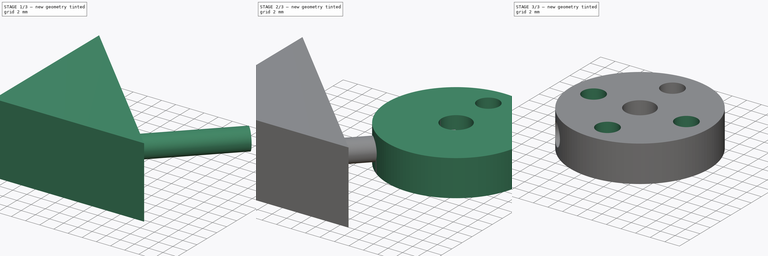
[diagram: build sequence overview — one tinted view per stage of 3, left to right]
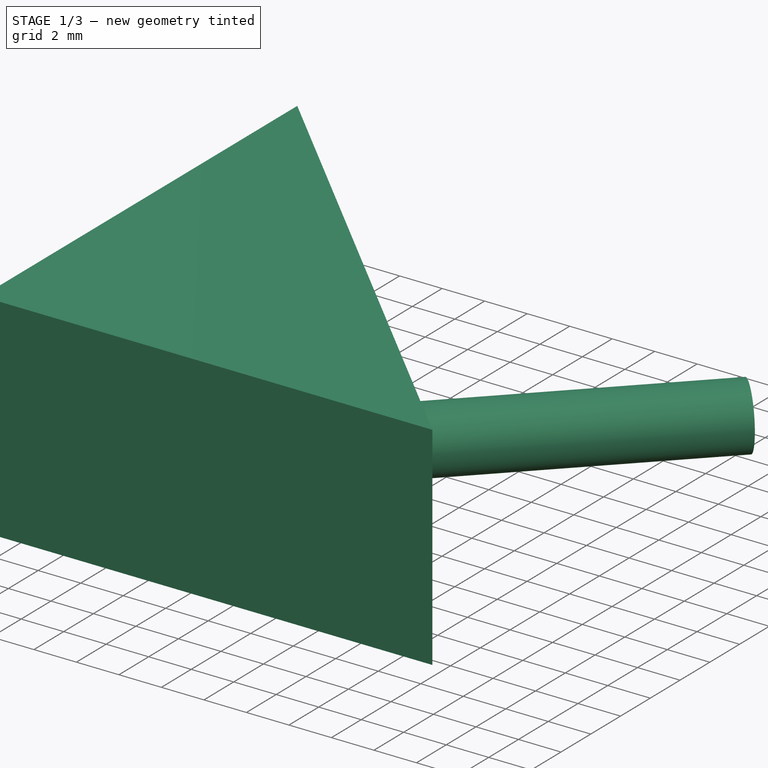
[diagram: stage 1 of 3 — iso view after this stage's code; geometry added in this stage tinted green]
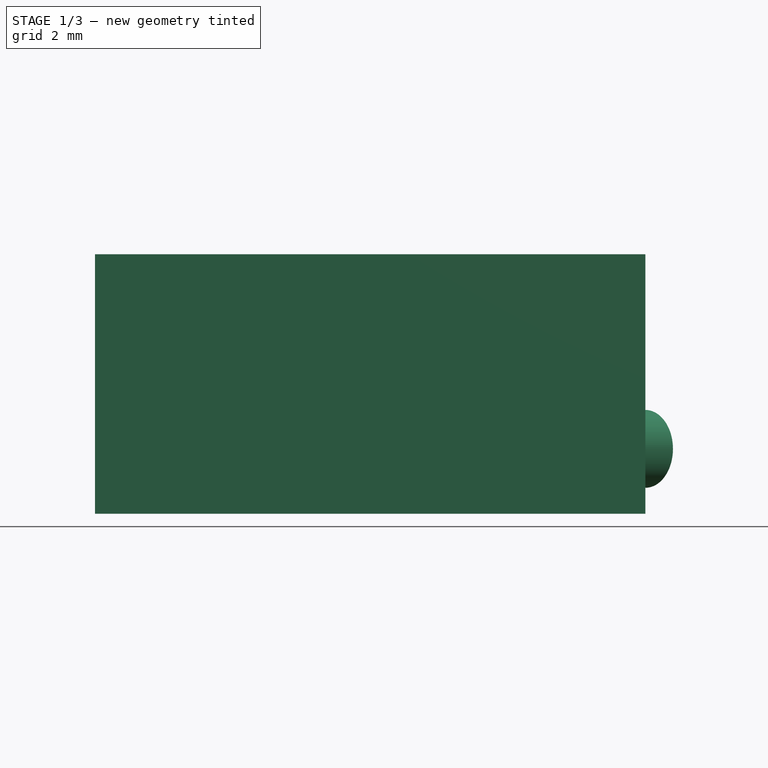
[diagram: stage 1 of 3 — front view after this stage's code; geometry added in this stage tinted green]
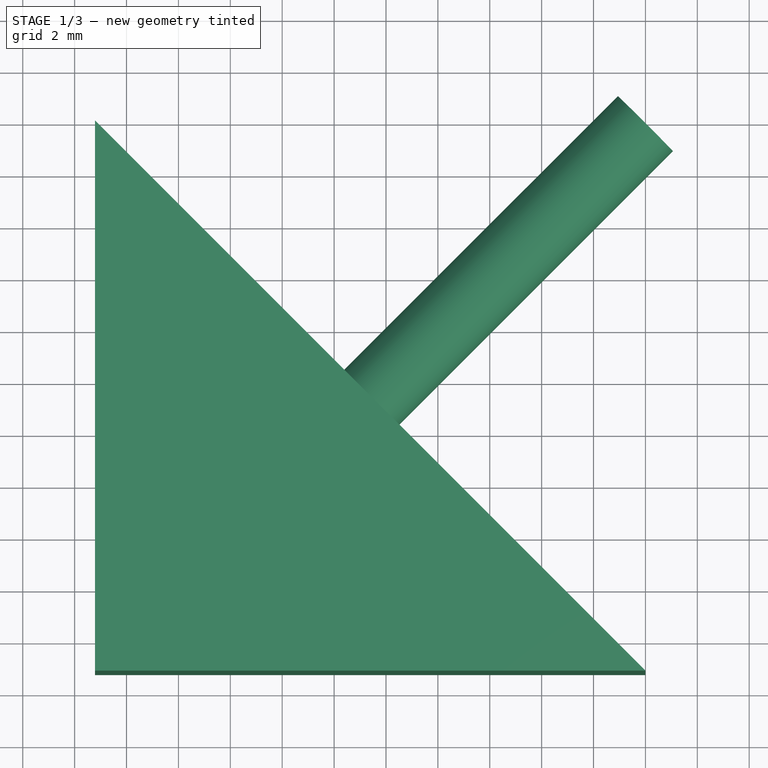
[diagram: stage 1 of 3 — top view after this stage's code; geometry added in this stage tinted green]
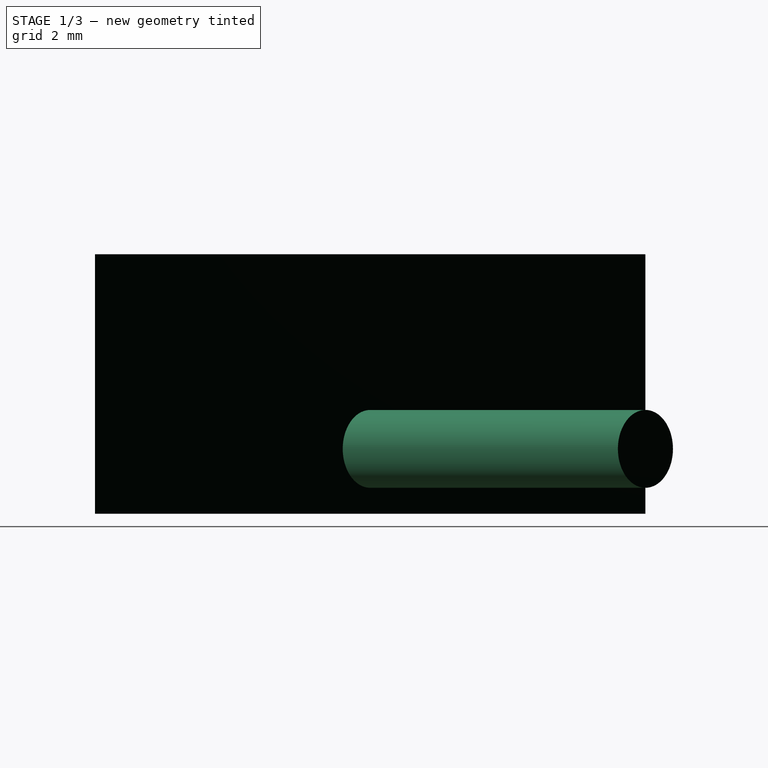
[diagram: stage 1 of 3 — right view after this stage's code; geometry added in this stage tinted green]
FCSTD DOCUMENT  (FreeCAD 0.18.1R)
Label: motor_hub
License: All rights reserved
LicenseURL: http://en.wikipedia.org/wiki/All_rights_reserved
objects: Sketcher::SketchObject×8, PartDesign::Pad×3, PartDesign::Pocket×2, PartDesign::Body×2, PartDesign::PolarPattern×1, PartDesign::Boolean×1
note: 22 computed .brp shape members not serialized (recipe doc carries the construction recipe); baked Part::Feature solids carry a one-line shape summary decoded from their .brp

FEATURE [Sketcher::SketchObject] Sketch003
  MapMode = 5
  Placement = pos=(0,0,0) rot=(1,0,0;1.5708rad)
  Support = -> [XZ_Plane]
  sketch-geometry (1):
    g0: Circle CenterX=0 CenterY=2.5 CenterZ=0 NormalX=0 NormalY=0 NormalZ=1 AngleXU=0 Radius=1.5
  constraints (3):
    c: PointOnObject(g0,g-2)
    c: DistanceY(g0) = 2.5
    c: Radius(g0) = 1.5
FEATURE [Sketcher::SketchObject] Sketch004
  MapMode = 5
  Support = -> [XY_Plane]
  sketch-geometry (3):
    g0: LineSegment StartX=-30 StartY=0 StartZ=0 EndX=0 EndY=-30 EndZ=0
    g1: LineSegment StartX=0 StartY=-30 StartZ=0 EndX=-30 EndY=-30 EndZ=0
    g2: LineSegment StartX=-30 StartY=-30 StartZ=0 EndX=-30 EndY=0 EndZ=0
  constraints (9):
    c: Coincident(g0,g1)
    c: Coincident(g1,g2)
    c: Coincident(g0,g2)
    c: Vertical(g2)
    c: Horizontal(g1)
    c: Equal(g1,g2)
    c: PointOnObject(g0,g-2)
    c: PointOnObject(g0,g-1)
    c: Distance(g2) = 30
FEATURE [Sketcher::SketchObject] Sketch005
  MapMode = 5
  Placement = pos=(0,0,0) rot=(1,0,0;1.5708rad)
  Support = -> [XZ_Plane]
  sketch-geometry (1):
    g0: Circle CenterX=0 CenterY=2.5 CenterZ=0 NormalX=0 NormalY=0 NormalZ=1 AngleXU=0 Radius=1.5
  constraints (3):
    c: PointOnObject(g0,g-2)
    c: Radius(g0) = 1.5
    c: DistanceY(g0) = 2.5
FEATURE [Sketcher::SketchObject] Sketch006
  MapMode = 5
  Support = -> [XY_Plane001]
  sketch-geometry (3):
    g0: LineSegment StartX=-21.2132 StartY=0 StartZ=0 EndX=0 EndY=-21.2132 EndZ=0
    g1: LineSegment StartX=0 StartY=-21.2132 StartZ=0 EndX=-21.2132 EndY=-21.2132 EndZ=0
    g2: LineSegment StartX=-21.2132 StartY=-21.2132 StartZ=0 EndX=-21.2132 EndY=0 EndZ=0
  constraints (9):
    c: Coincident(g0,g1)
    c: Coincident(g1,g2)
    c: Coincident(g0,g2)
    c: PointOnObject(g0,g-1)
    c: PointOnObject(g0,g-2)
    c: Horizontal(g1)
    c: Vertical(g2)
    c: Equal(g1,g2)
    c: Distance(g-1,g0) = 15
FEATURE [PartDesign::Pad] Pad001
  Length = 10
  Length2 = 100
  Profile = -> Sketch006
  Type = 0
FEATURE [Sketcher::SketchObject] Sketch007
  MapMode = 5
  Placement = pos=(-10.6066,-10.6066,0) rot=(0.281085,0.678598,0.678598;2.59356rad)
  Support = -> [Pad001]
  sketch-geometry (1):
    g0: Circle CenterX=0 CenterY=2.5 CenterZ=0 NormalX=0 NormalY=0 NormalZ=1 AngleXU=0 Radius=1.5
  constraints (3):
    c: PointOnObject(g0,g-2)
    c: Radius(g0) = 1.5
    c: DistanceY(g0) = 2.5
FEATURE [PartDesign::Pad] Pad002
  BaseFeature = -> Pad001
  Length = 15
  Length2 = 100
  Profile = -> Sketch007
  Type = 0
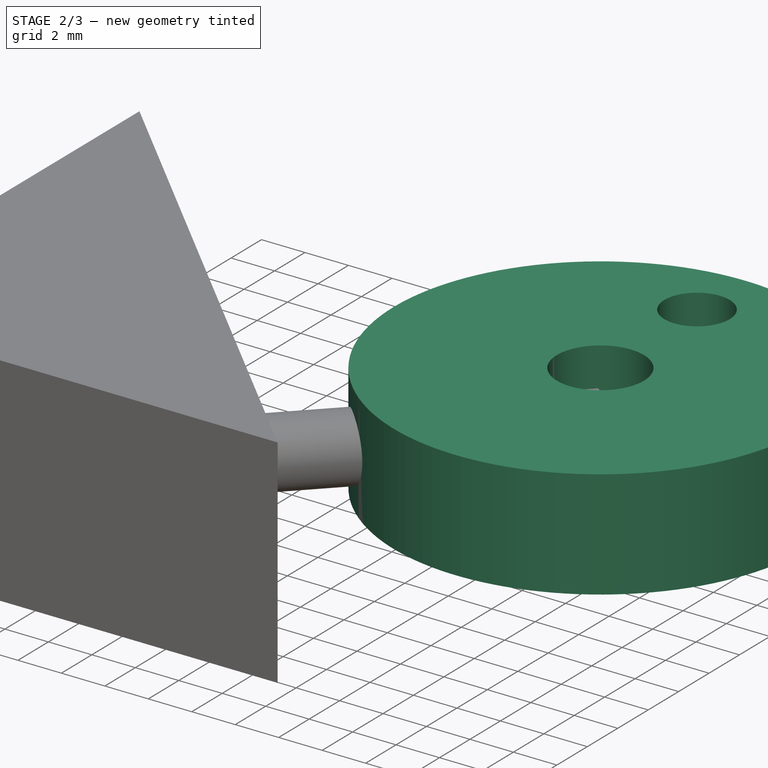
[diagram: stage 2 of 3 — iso view after this stage's code; geometry added in this stage tinted green]
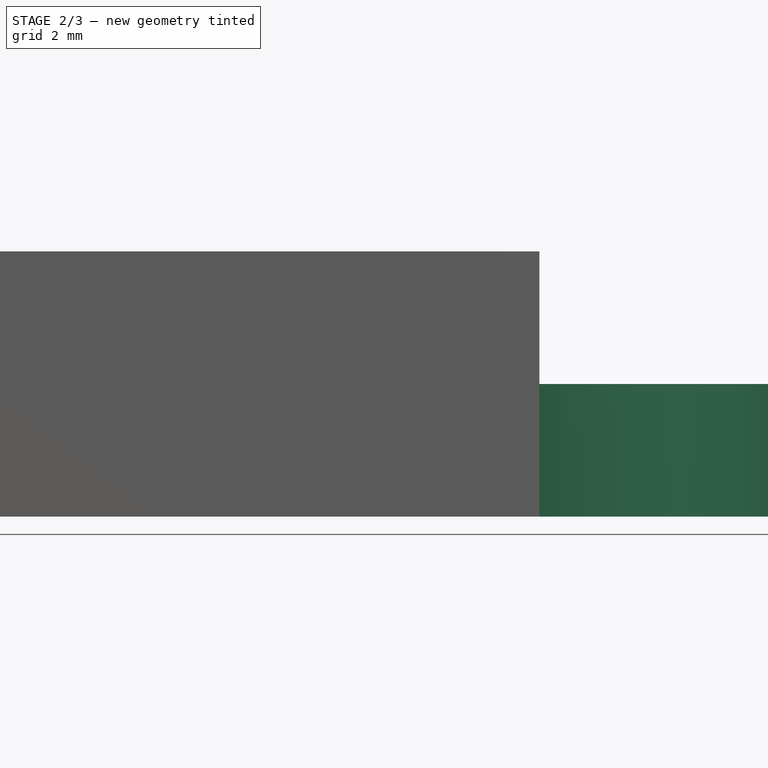
[diagram: stage 2 of 3 — front view after this stage's code; geometry added in this stage tinted green]
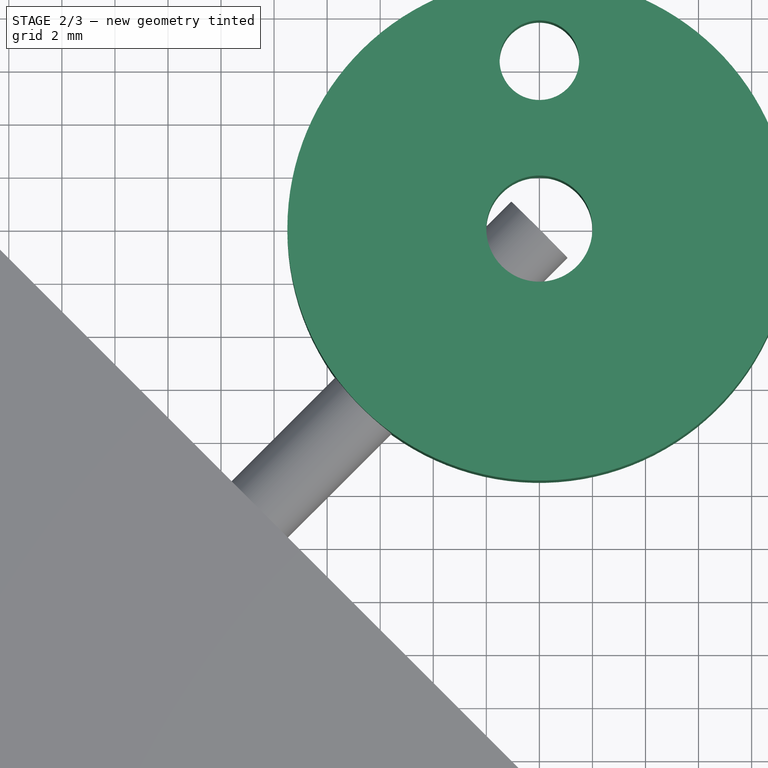
[diagram: stage 2 of 3 — top view after this stage's code; geometry added in this stage tinted green]
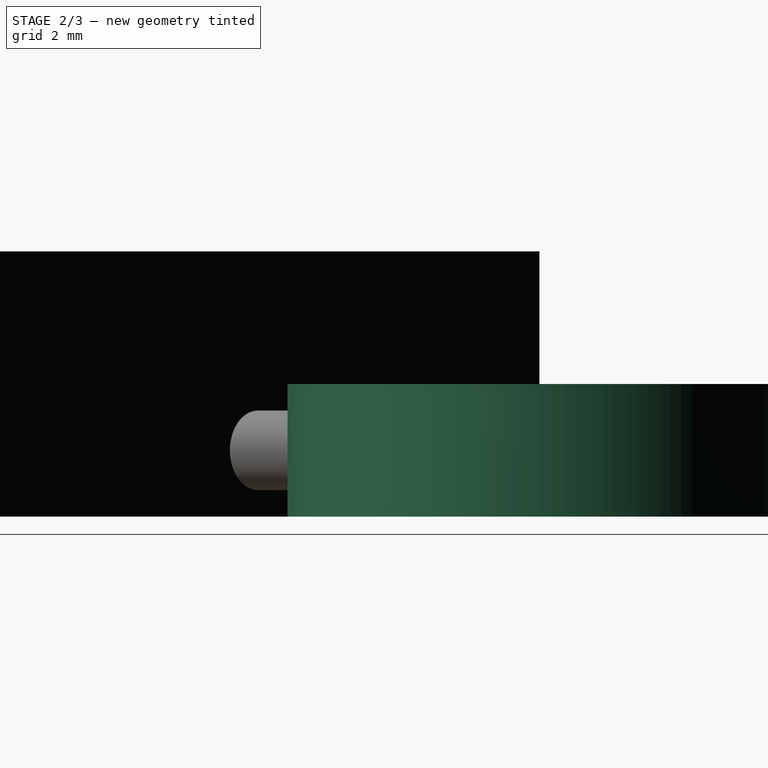
[diagram: stage 2 of 3 — right view after this stage's code; geometry added in this stage tinted green]
FEATURE [Sketcher::SketchObject] Sketch
  MapMode = 5
  Support = -> [XY_Plane]
  expr: Constraints[1] = 19 / 2
  sketch-geometry (1):
    g0: Circle CenterX=0 CenterY=0 CenterZ=0 NormalX=0 NormalY=0 NormalZ=1 AngleXU=0 Radius=9.5
  constraints (2):
    c: Coincident(g0,g-1)
    c: Radius(g0) = 9.5
FEATURE [PartDesign::Pad] Pad
  Length = 5
  Length2 = 100
  Profile = -> Sketch
  Type = 0
FEATURE [Sketcher::SketchObject] Sketch001
  MapMode = 5
  Placement = pos=(0,0,5) rot=(0,0,1;0rad)
  Support = -> [Pad]
  sketch-geometry (1):
    g0: Circle CenterX=0 CenterY=0 CenterZ=0 NormalX=0 NormalY=0 NormalZ=1 AngleXU=0 Radius=2
  constraints (2):
    c: Coincident(g0,g-1)
    c: Radius(g0) = 2
FEATURE [PartDesign::Pocket] Pocket
  BaseFeature = -> Pad
  Length = 5
  Length2 = 100
  Profile = -> Sketch001
  Type = 0
FEATURE [Sketcher::SketchObject] Sketch002
  MapMode = 5
  Placement = pos=(0,0,5) rot=(0,0,1;0rad)
  Support = -> [Pocket]
  sketch-geometry (1):
    g0: Circle CenterX=0 CenterY=6.35 CenterZ=0 NormalX=0 NormalY=0 NormalZ=1 AngleXU=0 Radius=1.5
  constraints (3):
    c: PointOnObject(g0,g-2)
    c: Radius(g0) = 1.5
    c: DistanceY(g0) = 6.35
FEATURE [PartDesign::Pocket] Pocket001
  BaseFeature = -> Pocket
  Length = 5
  Length2 = 100
  Profile = -> Sketch002
  Type = 0
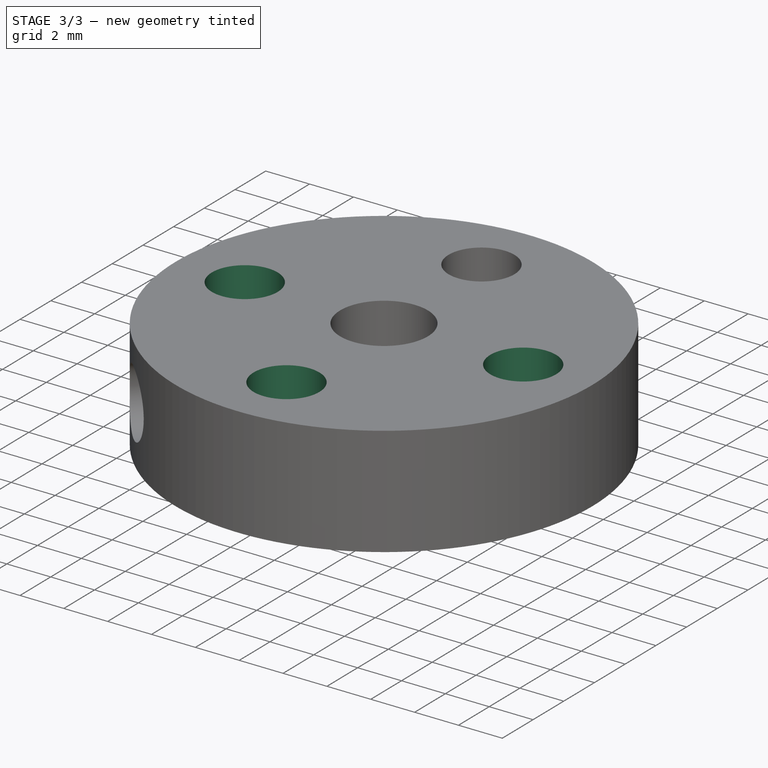
[diagram: stage 3 of 3 — iso view after this stage's code; geometry added in this stage tinted green]
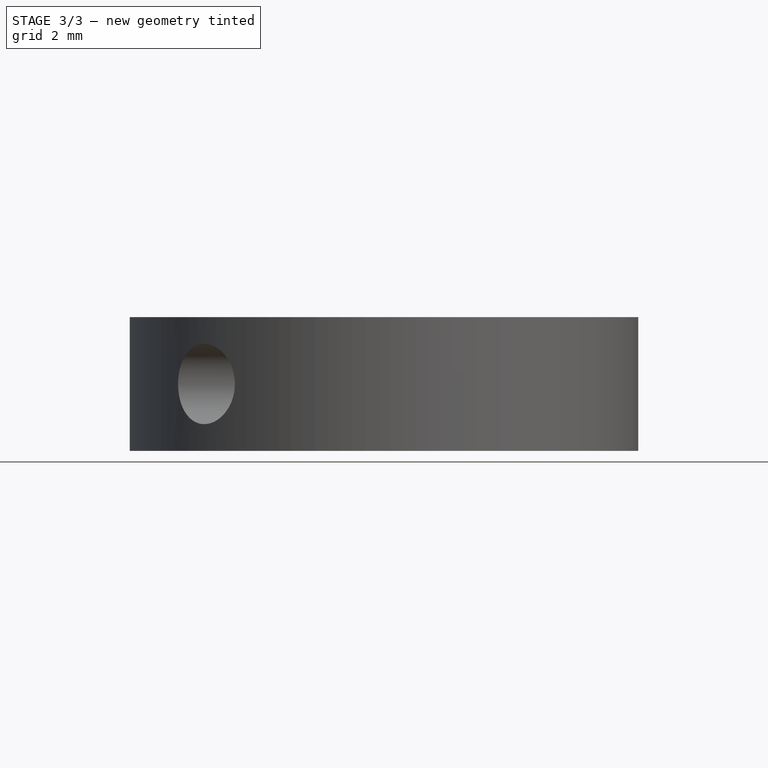
[diagram: stage 3 of 3 — front view after this stage's code; geometry added in this stage tinted green]
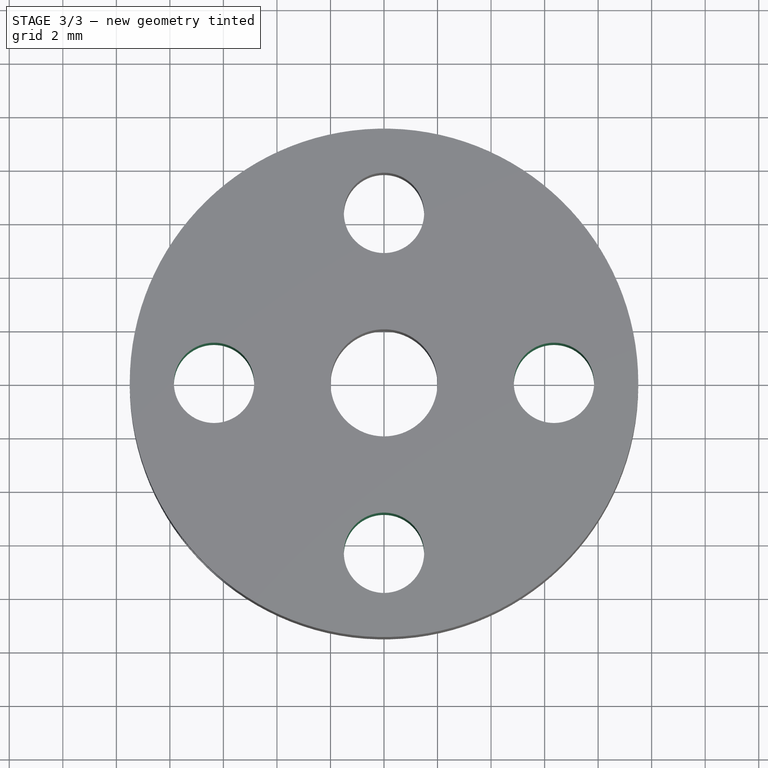
[diagram: stage 3 of 3 — top view after this stage's code; geometry added in this stage tinted green]
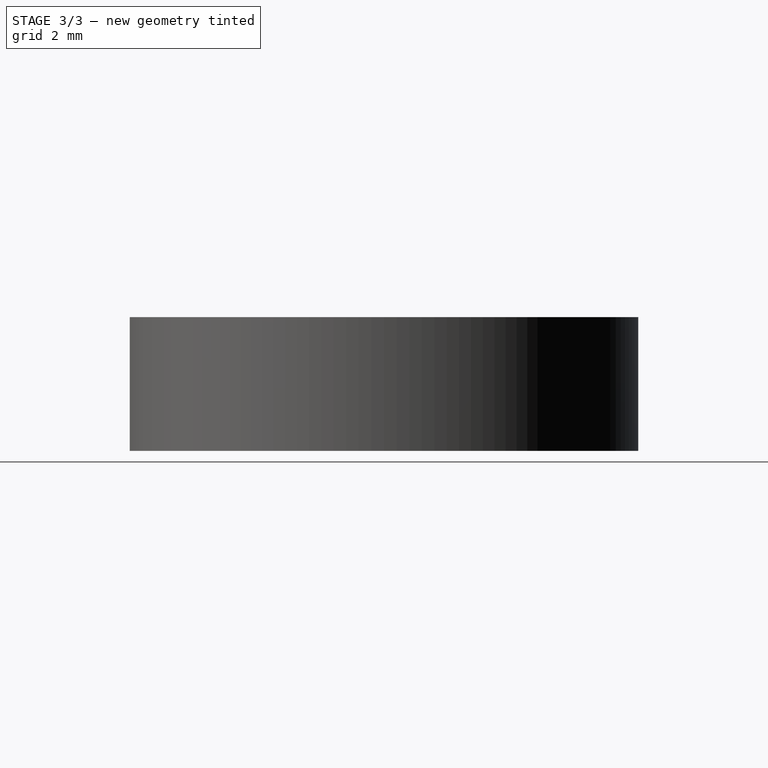
[diagram: stage 3 of 3 — right view after this stage's code; geometry added in this stage tinted green]
FEATURE [PartDesign::PolarPattern] PolarPattern
  Angle = 360
  Axis = -> Sketch002 [N_Axis]
  BaseFeature = -> Pocket001
  Occurrences = 4
  Originals = -> [Pocket001]
FEATURE [PartDesign::Body] Body001
  Group = -> [Sketch006,Pad001,Sketch007,Pad002]
  Origin = -> Origin001
  Tip = -> Pad002
FEATURE [PartDesign::Boolean] Boolean
  BaseFeature = -> PolarPattern
  Group = -> [Body001]
  Type = 1
FEATURE [PartDesign::Body] Body
  Group = -> [Sketch,Pad,Sketch001,Pocket,Sketch002,Pocket001,PolarPattern,Sketch003,Sketch004,Sketch005,Boolean]
  Origin = -> Origin
  Tip = -> Boolean
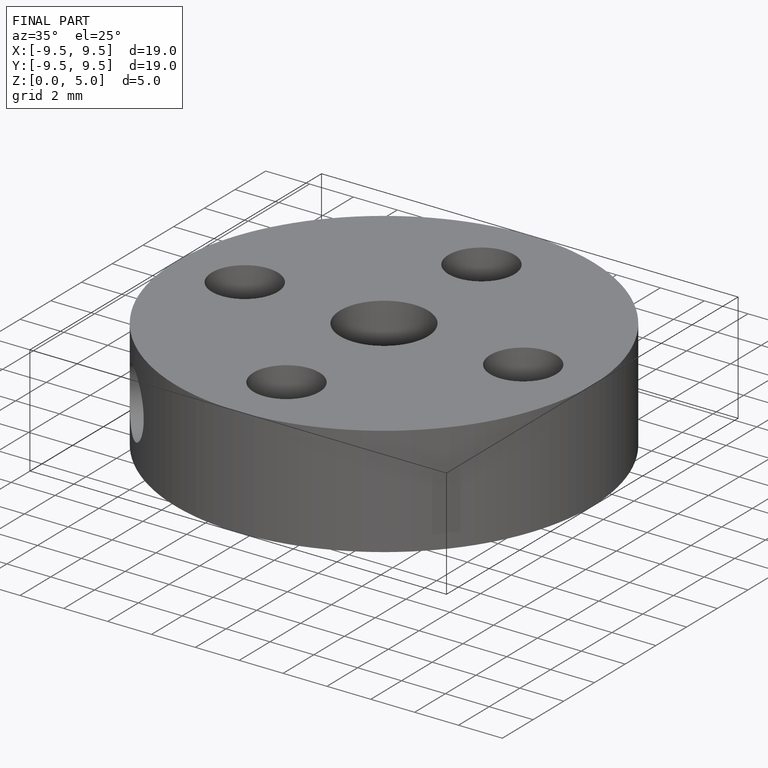
[diagram: finished part — iso view with bounding-box wireframe]
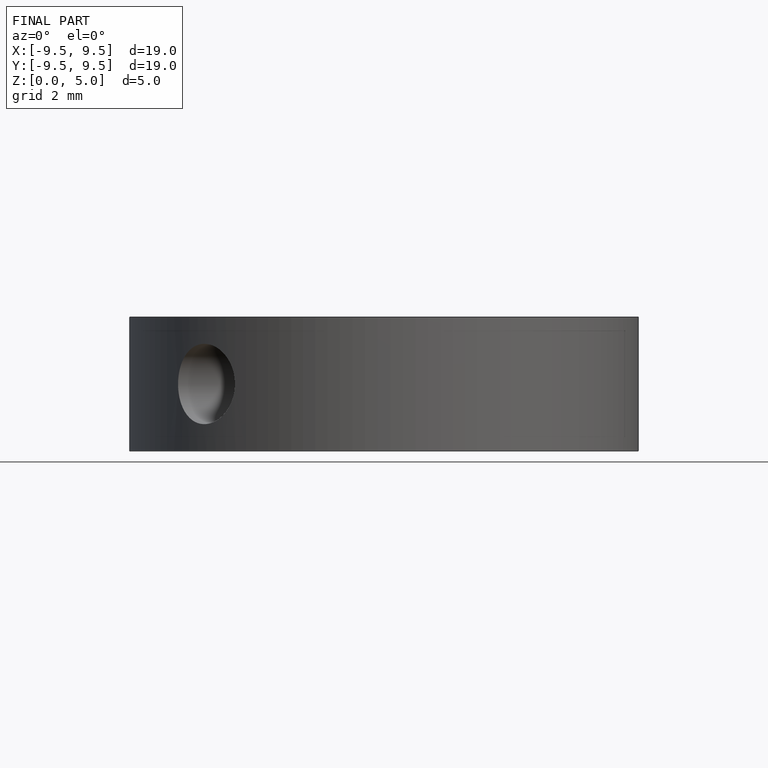
[diagram: finished part — front view with bounding-box wireframe]
